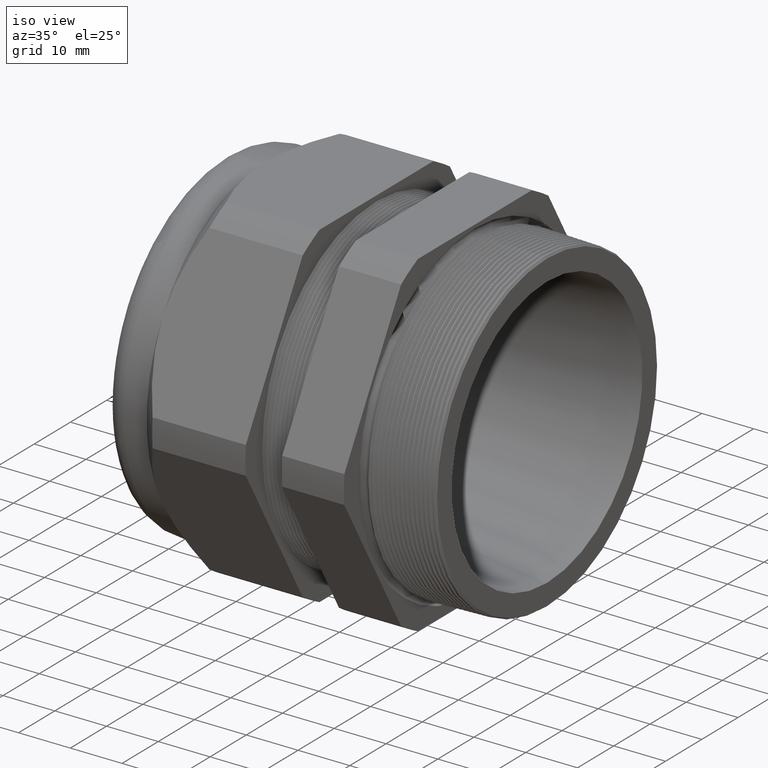
[diagram: clean part render]
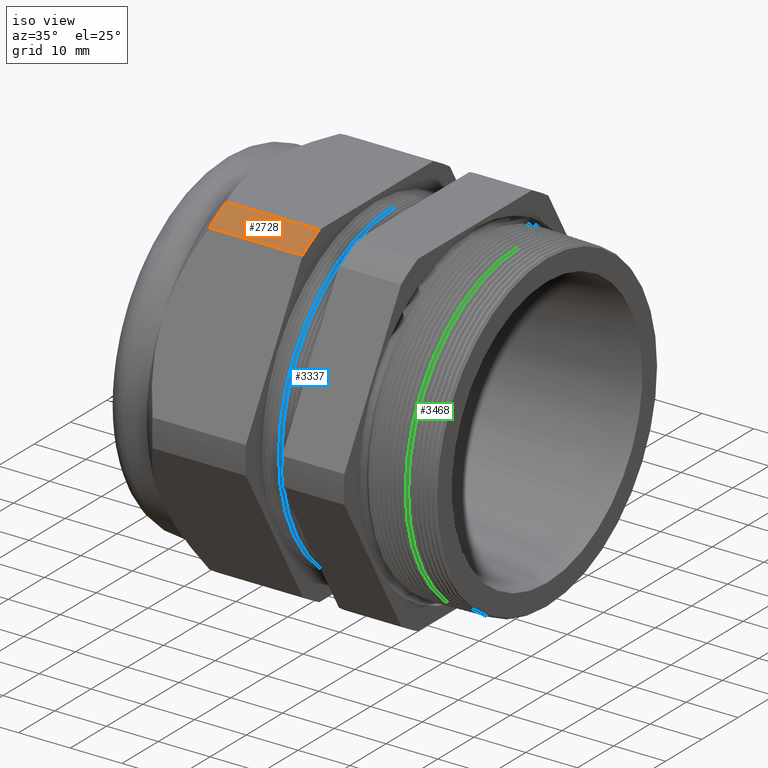
[diagram: same view with three faces highlighted in distinct colors, each labeled with its STEP entity id]
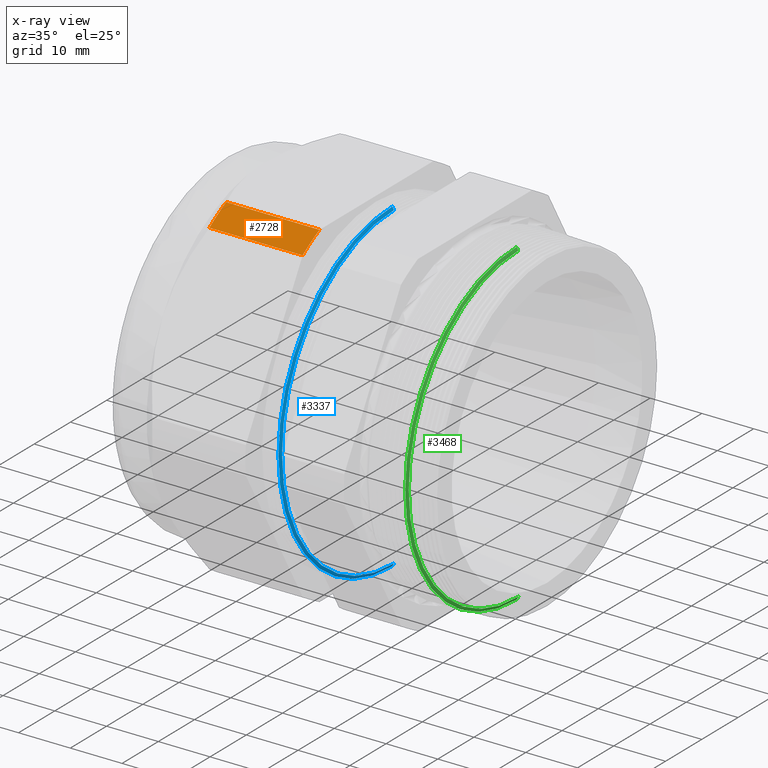
[diagram: x-ray of the same camera — body ghosted, the three highlighted faces saturated]
A machine part, iso view with three faces highlighted in distinct colors.
The next image is the same camera in x-ray (body ghosted, the three faces saturated) — at least one of them is partly hidden behind the body in this view.
Their STEP definitions:

[orange] entity #2728 — the highlighted cylindrical surface (partial cylindrical patch) has radius 36.0883 mm, axis along (-1, 0, 0).
#2716 = VERTEX_POINT ( 'NONE', #5475 ) ;
#2720 = EDGE_CURVE ( 'NONE', #2722, #2716, #5508, .T. ) ;
#2722 = VERTEX_POINT ( 'NONE', #5498 ) ;
#2728 = ADVANCED_FACE ( 'NONE', ( #5487 ), #5486, .T. ) ;
#2730 = EDGE_LOOP ( 'NONE', ( #2732, #2767, #2772, #2777 ) ) ;
#2732 = ORIENTED_EDGE ( 'NONE', *, *, #2720, .T. ) ;
#2767 = ORIENTED_EDGE ( 'NONE', *, *, #2768, .T. ) ;
#2768 = EDGE_CURVE ( 'NONE', #2716, #2770, #5603, .T. ) ;
#2770 = VERTEX_POINT ( 'NONE', #5598 ) ;
#2772 = ORIENTED_EDGE ( 'NONE', *, *, #2773, .F. ) ;
#2773 = EDGE_CURVE ( 'NONE', #2775, #2770, #5593, .T. ) ;
#2775 = VERTEX_POINT ( 'NONE', #5585 ) ;
#2777 = ORIENTED_EDGE ( 'NONE', *, *, #2779, .F. ) ;
#2779 = EDGE_CURVE ( 'NONE', #2722, #2775, #5583, .T. ) ;
#5475 = CARTESIAN_POINT ( 'NONE',  ( -1.768492000000000200, -0.6166625008868306100, 1.279999999999999800 ) ) ;
#5482 = DIRECTION ( 'NONE',  ( 0.0000000000000000000, 0.0000000000000000000, 1.000000000000000000 ) ) ;
#5483 = DIRECTION ( 'NONE',  ( -1.000000000000000000, 0.0000000000000000000, 0.0000000000000000000 ) ) ;
#5484 = CARTESIAN_POINT ( 'NONE',  ( 0.2400000000000001900, 0.0000000000000000000, 0.0000000000000000000 ) ) ;
#5485 = AXIS2_PLACEMENT_3D ( 'NONE', #5484, #5483, #5482 ) ;
#5486 = CYLINDRICAL_SURFACE ( 'NONE', #5485, 1.420799999999999800 ) ;
#5487 = FACE_OUTER_BOUND ( 'NONE', #2730, .T. ) ;
#5498 = CARTESIAN_POINT ( 'NONE',  ( -1.058802799999999400, -0.6166625008868306100, 1.279999999999999800 ) ) ;
#5505 = DIRECTION ( 'NONE',  ( -1.000000000000000000, 0.0000000000000000000, 0.0000000000000000000 ) ) ;
#5506 = VECTOR ( 'NONE', #5505, 39.37007874015748100 ) ;
#5507 = CARTESIAN_POINT ( 'NONE',  ( 0.2400000000000001900, -0.6166625008868306100, 1.279999999999999800 ) ) ;
#5508 = LINE ( 'NONE', #5507, #5506 ) ;
#5579 = DIRECTION ( 'NONE',  ( 0.0000000000000000000, 0.0000000000000000000, -1.000000000000000000 ) ) ;
#5580 = DIRECTION ( 'NONE',  ( 1.000000000000000000, 0.0000000000000000000, 0.0000000000000000000 ) ) ;
#5581 = CARTESIAN_POINT ( 'NONE',  ( -1.058802799999999400, 0.0000000000000000000, 0.0000000000000000000 ) ) ;
#5582 = AXIS2_PLACEMENT_3D ( 'NONE', #5581, #5580, #5579 ) ;
#5583 = CIRCLE ( 'NONE', #5582, 1.420799999999999800 ) ;
#5585 = CARTESIAN_POINT ( 'NONE',  ( -1.058802799999999400, -0.8001812664006673300, 1.174045391329238400 ) ) ;
#5590 = DIRECTION ( 'NONE',  ( -1.000000000000000000, 0.0000000000000000000, 0.0000000000000000000 ) ) ;
#5591 = VECTOR ( 'NONE', #5590, 39.37007874015748100 ) ;
#5592 = CARTESIAN_POINT ( 'NONE',  ( 0.2400000000000001900, -0.8001812664006673300, 1.174045391329238400 ) ) ;
#5593 = LINE ( 'NONE', #5592, #5591 ) ;
#5598 = CARTESIAN_POINT ( 'NONE',  ( -1.768492000000000000, -0.8001812664006672200, 1.174045391329238400 ) ) ;
#5599 = DIRECTION ( 'NONE',  ( 0.0000000000000000000, 0.0000000000000000000, -1.000000000000000000 ) ) ;
#5600 = DIRECTION ( 'NONE',  ( 1.000000000000000000, 0.0000000000000000000, 0.0000000000000000000 ) ) ;
#5601 = CARTESIAN_POINT ( 'NONE',  ( -1.768492000000000200, 0.0000000000000000000, 0.0000000000000000000 ) ) ;
#5602 = AXIS2_PLACEMENT_3D ( 'NONE', #5601, #5600, #5599 ) ;
#5603 = CIRCLE ( 'NONE', #5602, 1.420799999999999800 ) ;

[blue] entity #3337 — the highlighted conical surface has half-angle 61.5 deg.
#848 = FACE_OUTER_BOUND ( 'NONE', #3338, .T. ) ;
#868 = DIRECTION ( 'NONE',  ( 0.0000000000000000000, 0.0000000000000000000, -1.000000000000000000 ) ) ;
#869 = DIRECTION ( 'NONE',  ( 1.000000000000000000, 0.0000000000000000000, 0.0000000000000000000 ) ) ;
#870 = AXIS2_PLACEMENT_3D ( 'NONE', #877, #869, #868 ) ;
#871 = CIRCLE ( 'NONE', #870, 1.214630735171808400 ) ;
#877 = CARTESIAN_POINT ( 'NONE',  ( -0.9250284130658955600, 0.0000000000000000000, 0.0000000000000000000 ) ) ;
#904 = DIRECTION ( 'NONE',  ( 0.0000000000000000000, 0.0000000000000000000, 1.000000000000000000 ) ) ;
#905 = DIRECTION ( 'NONE',  ( -1.000000000000000000, 0.0000000000000000000, 0.0000000000000000000 ) ) ;
#906 = CARTESIAN_POINT ( 'NONE',  ( -0.9388027999999993800, 0.0000000000000000000, 0.0000000000000000000 ) ) ;
#907 = AXIS2_PLACEMENT_3D ( 'NONE', #906, #905, #904 ) ;
#909 = CONICAL_SURFACE ( 'NONE', #907, 1.240000000000000000, 1.073377489976500300 ) ;
#2033 = VERTEX_POINT ( 'NONE', #4154 ) ;
#2037 = VERTEX_POINT ( 'NONE', #4209 ) ;
#2041 = EDGE_CURVE ( 'NONE', #2052, #2037, #4203, .T. ) ;
#2051 = VERTEX_POINT ( 'NONE', #4242 ) ;
#2052 = VERTEX_POINT ( 'NONE', #4241 ) ;
#2115 = EDGE_CURVE ( 'NONE', #2051, #2033, #4316, .T. ) ;
#2664 = EDGE_CURVE ( 'NONE', #2037, #2033, #5340, .T. ) ;
#3315 = ORIENTED_EDGE ( 'NONE', *, *, #2115, .F. ) ;
#3316 = ORIENTED_EDGE ( 'NONE', *, *, #3317, .F. ) ;
#3317 = EDGE_CURVE ( 'NONE', #2052, #2051, #871, .T. ) ;
#3318 = ORIENTED_EDGE ( 'NONE', *, *, #2041, .T. ) ;
#3319 = ORIENTED_EDGE ( 'NONE', *, *, #2664, .T. ) ;
#3337 = ADVANCED_FACE ( 'NONE', ( #848 ), #909, .T. ) ;
#3338 = EDGE_LOOP ( 'NONE', ( #3315, #3316, #3318, #3319 ) ) ;
#4154 = CARTESIAN_POINT ( 'NONE',  ( -0.9370720572092157100, 1.514727167430621500E-016, -1.236812368316722500 ) ) ;
#4200 = DIRECTION ( 'NONE',  ( -0.4771587602596192300, 0.0000000000000000000, 0.8788171126619593900 ) ) ;
#4201 = VECTOR ( 'NONE', #4200, 39.37007874015748900 ) ;
#4202 = CARTESIAN_POINT ( 'NONE',  ( -0.9388027999999993800, 0.0000000000000000000, 1.240000000000000000 ) ) ;
#4203 = LINE ( 'NONE', #4202, #4201 ) ;
#4209 = CARTESIAN_POINT ( 'NONE',  ( -0.9370720572092157100, 0.0000000000000000000, 1.236812368316722500 ) ) ;
#4241 = CARTESIAN_POINT ( 'NONE',  ( -0.9250284130658955600, 0.0000000000000000000, 1.214630735171808400 ) ) ;
#4242 = CARTESIAN_POINT ( 'NONE',  ( -0.9250284130658955600, 1.501075974989541400E-016, -1.214630735171808400 ) ) ;
#4313 = DIRECTION ( 'NONE',  ( -0.4771587602596192300, 1.076240564057387400E-016, -0.8788171126619593900 ) ) ;
#4314 = VECTOR ( 'NONE', #4313, 39.37007874015748900 ) ;
#4315 = CARTESIAN_POINT ( 'NONE',  ( -0.9388027999999993800, 1.518562030942717800E-016, -1.240000000000000000 ) ) ;
#4316 = LINE ( 'NONE', #4315, #4314 ) ;
#5336 = DIRECTION ( 'NONE',  ( 0.0000000000000000000, 0.0000000000000000000, 1.000000000000000000 ) ) ;
#5337 = DIRECTION ( 'NONE',  ( 1.000000000000000000, 0.0000000000000000000, 0.0000000000000000000 ) ) ;
#5338 = CARTESIAN_POINT ( 'NONE',  ( -0.9370720572092157100, 0.0000000000000000000, 0.0000000000000000000 ) ) ;
#5339 = AXIS2_PLACEMENT_3D ( 'NONE', #5338, #5337, #5336 ) ;
#5340 = CIRCLE ( 'NONE', #5339, 1.236812368316722500 ) ;

[green] entity #3468 — the highlighted conical surface has half-angle 61.5 deg.
#338 = DIRECTION ( 'NONE',  ( -0.4771587602596173400, 0.0000000000000000000, 0.8788171126619606100 ) ) ;
#339 = VECTOR ( 'NONE', #338, 39.37007874015748900 ) ;
#340 = CARTESIAN_POINT ( 'NONE',  ( 0.005000000000000083400, 0.0000000000000000000, 1.220391908608417600 ) ) ;
#341 = LINE ( 'NONE', #340, #339 ) ;
#446 = CARTESIAN_POINT ( 'NONE',  ( 0.009543199825806883400, 0.0000000000000000000, 1.212024375439814800 ) ) ;
#452 = CARTESIAN_POINT ( 'NONE',  ( 0.009543199825806883400, 1.484451470609136000E-016, -1.212024375439815000 ) ) ;
#453 = DIRECTION ( 'NONE',  ( -0.4771587602596173400, 1.076240564057388800E-016, -0.8788171126619606100 ) ) ;
#454 = VECTOR ( 'NONE', #453, 39.37007874015748900 ) ;
#455 = CARTESIAN_POINT ( 'NONE',  ( 0.005000000000000083400, 1.494549044582627900E-016, -1.220391908608417600 ) ) ;
#456 = LINE ( 'NONE', #455, #454 ) ;
#1051 = DIRECTION ( 'NONE',  ( 0.0000000000000000000, 0.0000000000000000000, 1.000000000000000000 ) ) ;
#1052 = DIRECTION ( 'NONE',  ( -1.000000000000000000, 0.0000000000000000000, 0.0000000000000000000 ) ) ;
#1053 = CARTESIAN_POINT ( 'NONE',  ( 0.005000000000000083400, 0.0000000000000000000, 0.0000000000000000000 ) ) ;
#1054 = AXIS2_PLACEMENT_3D ( 'NONE', #1053, #1052, #1051 ) ;
#1056 = CONICAL_SURFACE ( 'NONE', #1054, 1.220391908608417600, 1.073377489976502500 ) ;
#1061 = FACE_OUTER_BOUND ( 'NONE', #3469, .T. ) ;
#1101 = DIRECTION ( 'NONE',  ( 0.0000000000000000000, 0.0000000000000000000, -1.000000000000000000 ) ) ;
#1102 = DIRECTION ( 'NONE',  ( 1.000000000000000000, 0.0000000000000000000, 0.0000000000000000000 ) ) ;
#1103 = CARTESIAN_POINT ( 'NONE',  ( 0.02152926432092473800, 0.0000000000000000000, 0.0000000000000000000 ) ) ;
#1104 = AXIS2_PLACEMENT_3D ( 'NONE', #1103, #1102, #1101 ) ;
#1109 = CIRCLE ( 'NONE', #1104, 1.189948790814587800 ) ;
#2465 = EDGE_CURVE ( 'NONE', #3031, #3026, #4918, .T. ) ;
#2757 = VERTEX_POINT ( 'NONE', #5556 ) ;
#2805 = VERTEX_POINT ( 'NONE', #5649 ) ;
#2993 = EDGE_CURVE ( 'NONE', #2805, #3031, #341, .T. ) ;
#3024 = EDGE_CURVE ( 'NONE', #2757, #3026, #456, .T. ) ;
#3026 = VERTEX_POINT ( 'NONE', #452 ) ;
#3031 = VERTEX_POINT ( 'NONE', #446 ) ;
#3468 = ADVANCED_FACE ( 'NONE', ( #1061 ), #1056, .T. ) ;
#3469 = EDGE_LOOP ( 'NONE', ( #3521, #3522, #3524, #3525 ) ) ;
#3521 = ORIENTED_EDGE ( 'NONE', *, *, #3024, .F. ) ;
#3522 = ORIENTED_EDGE ( 'NONE', *, *, #3523, .F. ) ;
#3523 = EDGE_CURVE ( 'NONE', #2805, #2757, #1109, .T. ) ;
#3524 = ORIENTED_EDGE ( 'NONE', *, *, #2993, .T. ) ;
#3525 = ORIENTED_EDGE ( 'NONE', *, *, #2465, .T. ) ;
#4153 = DIRECTION ( 'NONE',  ( 0.0000000000000000000, 0.0000000000000000000, 1.000000000000000000 ) ) ;
#4915 = DIRECTION ( 'NONE',  ( 1.000000000000000000, 0.0000000000000000000, 0.0000000000000000000 ) ) ;
#4916 = CARTESIAN_POINT ( 'NONE',  ( 0.009543199825806883400, 0.0000000000000000000, 0.0000000000000000000 ) ) ;
#4917 = AXIS2_PLACEMENT_3D ( 'NONE', #4916, #4915, #4153 ) ;
#4918 = CIRCLE ( 'NONE', #4917, 1.212024375439814800 ) ;
#5556 = CARTESIAN_POINT ( 'NONE',  ( 0.02152926432092473800, 1.470784374845643800E-016, -1.189948790814587800 ) ) ;
#5649 = CARTESIAN_POINT ( 'NONE',  ( 0.02152926432092473800, 0.0000000000000000000, 1.189948790814587800 ) ) ;